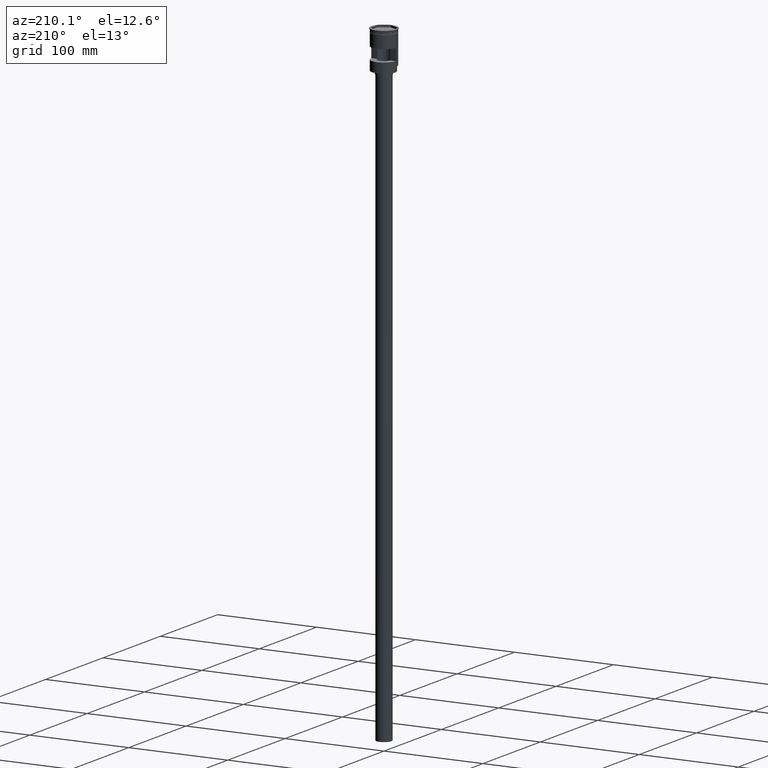
[diagram: clean part render]
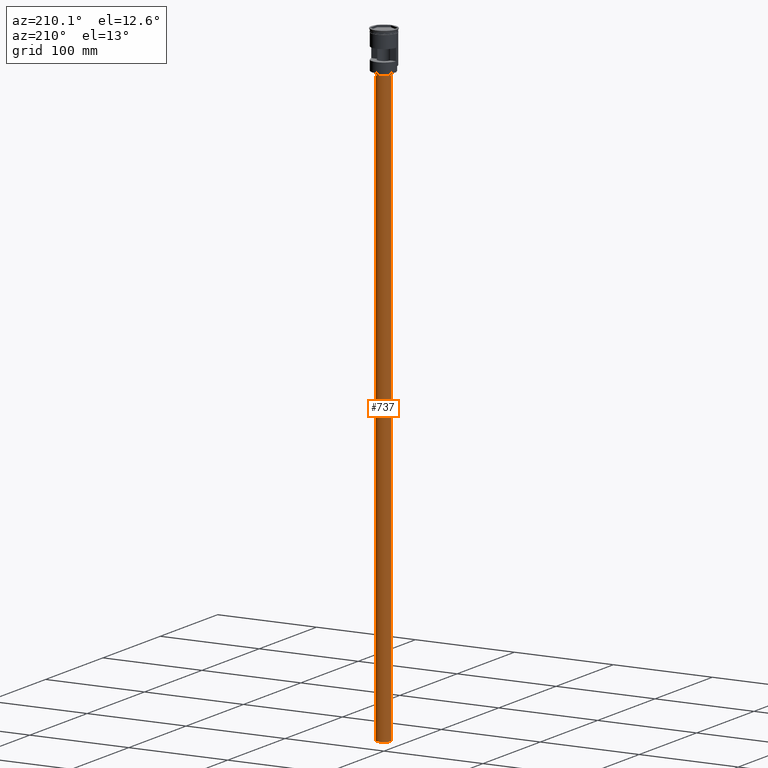
[diagram: same view with one face highlighted and labeled with its STEP entity id]
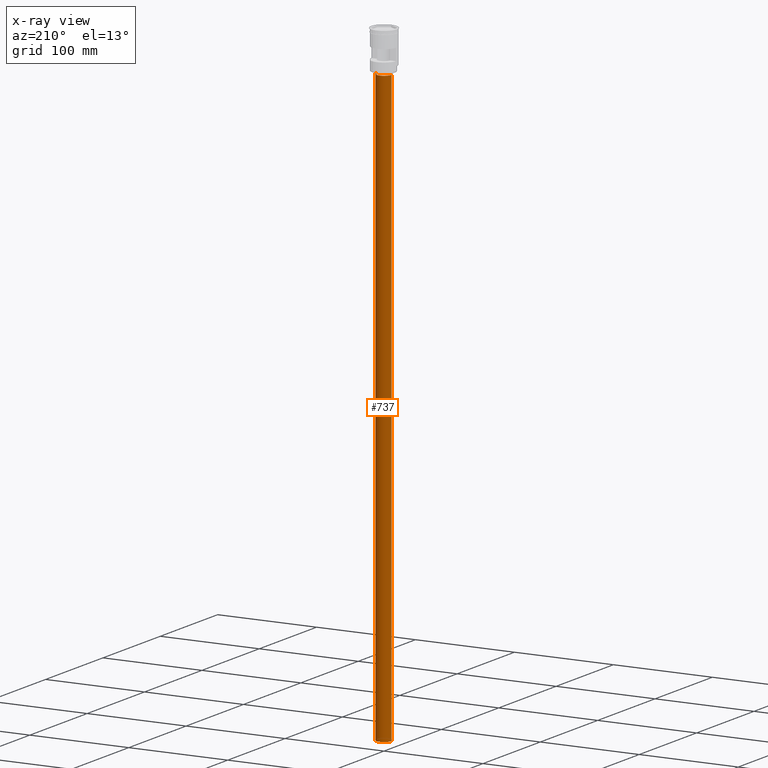
[diagram: x-ray of the same camera — body ghosted, the highlighted face saturated]
A machine part, auxiliary view. The second image highlights one B-rep face of the part: STEP entity #737.
The next image is the same camera in x-ray: the body ghosted, the highlighted face saturated — about 0% of this face is hidden behind the body in this view.
In plain terms, the highlighted cylindrical surface (edge-blend (fillet) strip) has radius 7.5 mm, axis along (-0, -0, 1).
Its self-contained STEP definition (entity closure, byte-faithful):
#15 = DIRECTION ( 'NONE',  ( -1.000000000000000000, 0.000000000000000000, 0.000000000000000000 ) ) ;
#40 = CARTESIAN_POINT ( 'NONE',  ( -7.500000000000000000, 9.184850993605147944E-16, -41.50000000000000000 ) ) ;
#50 = DIRECTION ( 'NONE',  ( -0.000000000000000000, -0.000000000000000000, 1.000000000000000000 ) ) ;
#56 = EDGE_CURVE ( 'NONE', #1383, #141, #1395, .T. ) ;
#75 = EDGE_LOOP ( 'NONE', ( #933, #496, #797, #1018 ) ) ;
#141 = VERTEX_POINT ( 'NONE', #600 ) ;
#153 = VECTOR ( 'NONE', #1203, 1000.000000000000000 ) ;
#181 = AXIS2_PLACEMENT_3D ( 'NONE', #1126, #1256, #15 ) ;
#229 = DIRECTION ( 'NONE',  ( -1.000000000000000000, 0.000000000000000000, 0.000000000000000000 ) ) ;
#239 = CARTESIAN_POINT ( 'NONE',  ( 0.000000000000000000, 0.000000000000000000, -638.5000000000000000 ) ) ;
#338 = CARTESIAN_POINT ( 'NONE',  ( 7.500000000000000000, 0.000000000000000000, -41.50000000000000000 ) ) ;
#471 = DIRECTION ( 'NONE',  ( 0.000000000000000000, 0.000000000000000000, -1.000000000000000000 ) ) ;
#496 = ORIENTED_EDGE ( 'NONE', *, *, #1387, .T. ) ;
#510 = VECTOR ( 'NONE', #50, 1000.000000000000000 ) ;
#524 = FACE_OUTER_BOUND ( 'NONE', #75, .T. ) ;
#600 = CARTESIAN_POINT ( 'NONE',  ( 7.500000000000000000, 0.000000000000000000, -638.5000000000000000 ) ) ;
#641 = CARTESIAN_POINT ( 'NONE',  ( 0.000000000000000000, 0.000000000000000000, -638.5000000000000000 ) ) ;
#643 = EDGE_CURVE ( 'NONE', #1466, #1522, #901, .T. ) ;
#670 = DIRECTION ( 'NONE',  ( -0.000000000000000000, -0.000000000000000000, 1.000000000000000000 ) ) ;
#686 = AXIS2_PLACEMENT_3D ( 'NONE', #239, #471, #229 ) ;
#737 = ADVANCED_FACE ( 'NONE', ( #524 ), #1406, .T. ) ;
#767 = AXIS2_PLACEMENT_3D ( 'NONE', #641, #670, #781 ) ;
#775 = CARTESIAN_POINT ( 'NONE',  ( -7.500000000000000000, 9.184850993605147944E-16, -638.5000000000000000 ) ) ;
#781 = DIRECTION ( 'NONE',  ( 1.000000000000000000, 0.000000000000000000, 0.000000000000000000 ) ) ;
#797 = ORIENTED_EDGE ( 'NONE', *, *, #643, .T. ) ;
#813 = CARTESIAN_POINT ( 'NONE',  ( 7.500000000000000000, 0.000000000000000000, -638.5000000000000000 ) ) ;
#901 = CIRCLE ( 'NONE', #181, 7.500000000000000000 ) ;
#926 = LINE ( 'NONE', #775, #510 ) ;
#933 = ORIENTED_EDGE ( 'NONE', *, *, #56, .F. ) ;
#1018 = ORIENTED_EDGE ( 'NONE', *, *, #1496, .F. ) ;
#1126 = CARTESIAN_POINT ( 'NONE',  ( 0.000000000000000000, 0.000000000000000000, -41.50000000000000000 ) ) ;
#1165 = CARTESIAN_POINT ( 'NONE',  ( -7.500000000000000000, 9.184850993605147944E-16, -638.5000000000000000 ) ) ;
#1203 = DIRECTION ( 'NONE',  ( -0.000000000000000000, -0.000000000000000000, 1.000000000000000000 ) ) ;
#1256 = DIRECTION ( 'NONE',  ( 0.000000000000000000, 0.000000000000000000, -1.000000000000000000 ) ) ;
#1383 = VERTEX_POINT ( 'NONE', #1165 ) ;
#1387 = EDGE_CURVE ( 'NONE', #1383, #1466, #926, .T. ) ;
#1395 = CIRCLE ( 'NONE', #686, 7.500000000000000000 ) ;
#1406 = CYLINDRICAL_SURFACE ( 'NONE', #767, 7.500000000000000000 ) ;
#1466 = VERTEX_POINT ( 'NONE', #40 ) ;
#1496 = EDGE_CURVE ( 'NONE', #141, #1522, #1541, .T. ) ;
#1522 = VERTEX_POINT ( 'NONE', #338 ) ;
#1541 = LINE ( 'NONE', #813, #153 ) ;